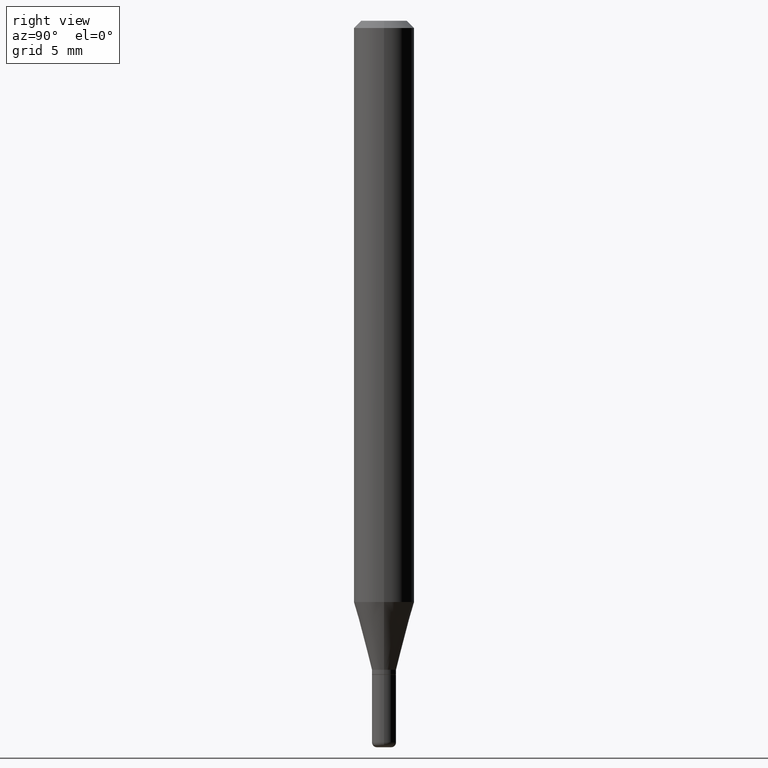
[diagram: clean part render]
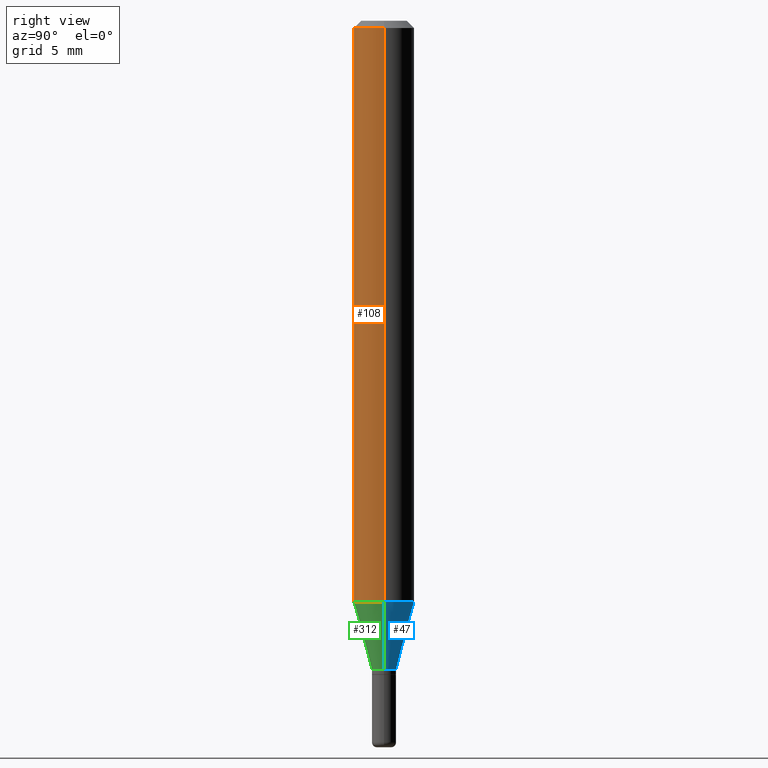
[diagram: same view with three faces highlighted in distinct colors, each labeled with its STEP entity id]
A machine part, right view with three faces highlighted in distinct colors.
Their STEP definitions:

[orange] entity #108 — the highlighted cylindrical surface (edge-blend (fillet) strip) has radius 1.5875 mm, axis along (-0, 0, 1).
#36 = VECTOR ( 'NONE', #422, 39.37007874015748143 ) ;
#39 = CARTESIAN_POINT ( 'NONE',  ( 0.06250000000000000000, -4.888073874380378612E-16, -0.01499999999999970281 ) ) ;
#50 = DIRECTION ( 'NONE',  ( 1.000000000000000000, -6.982962677686262766E-15, 0.000000000000000000 ) ) ;
#92 = CIRCLE ( 'NONE', #308, 0.06250000000000000000 ) ;
#95 = CARTESIAN_POINT ( 'NONE',  ( 0.000000000000000000, 0.000000000000000000, 0.000000000000000000 ) ) ;
#98 = DIRECTION ( 'NONE',  ( 1.000000000000000000, -6.982962677686266711E-15, 0.000000000000000000 ) ) ;
#100 = VECTOR ( 'NONE', #500, 39.37007874015748143 ) ;
#103 = EDGE_CURVE ( 'NONE', #200, #300, #287, .T. ) ;
#108 = ADVANCED_FACE ( 'NONE', ( #374 ), #459, .T. ) ;
#111 = ORIENTED_EDGE ( 'NONE', *, *, #404, .T. ) ;
#115 = EDGE_CURVE ( 'NONE', #200, #486, #296, .T. ) ;
#127 = AXIS2_PLACEMENT_3D ( 'NONE', #95, #173, #421 ) ;
#151 = ORIENTED_EDGE ( 'NONE', *, *, #453, .F. ) ;
#173 = DIRECTION ( 'NONE',  ( -2.445468806185136597E-29, 3.491481338843145583E-15, 1.000000000000000000 ) ) ;
#179 = CARTESIAN_POINT ( 'NONE',  ( 0.06250000000000000000, -4.364351673553916694E-16, 3.047610484872459871E-30 ) ) ;
#182 = CARTESIAN_POINT ( 'NONE',  ( -0.06250000000000000000, -3.745856318565706082E-15, -1.200048094716167135 ) ) ;
#200 = VERTEX_POINT ( 'NONE', #182 ) ;
#230 = VERTEX_POINT ( 'NONE', #39 ) ;
#231 = ORIENTED_EDGE ( 'NONE', *, *, #103, .F. ) ;
#244 = LINE ( 'NONE', #179, #36 ) ;
#248 = CARTESIAN_POINT ( 'NONE',  ( 2.934680181550293043E-29, -4.189945528415768698E-15, -1.200048094716167135 ) ) ;
#268 = AXIS2_PLACEMENT_3D ( 'NONE', #248, #290, #50 ) ;
#287 = LINE ( 'NONE', #423, #100 ) ;
#290 = DIRECTION ( 'NONE',  ( -2.445468806185136597E-29, 3.491481338843145583E-15, 1.000000000000000000 ) ) ;
#296 = CIRCLE ( 'NONE', #268, 0.06250000000000000000 ) ;
#300 = VERTEX_POINT ( 'NONE', #342 ) ;
#308 = AXIS2_PLACEMENT_3D ( 'NONE', #460, #328, #98 ) ;
#328 = DIRECTION ( 'NONE',  ( -2.445468806185136597E-29, 3.491481338843145583E-15, 1.000000000000000000 ) ) ;
#342 = CARTESIAN_POINT ( 'NONE',  ( -0.06250000000000000000, -1.677069664399144681E-15, -0.01499999999999970281 ) ) ;
#374 = FACE_OUTER_BOUND ( 'NONE', #515, .T. ) ;
#396 = ORIENTED_EDGE ( 'NONE', *, *, #115, .T. ) ;
#404 = EDGE_CURVE ( 'NONE', #486, #230, #244, .T. ) ;
#421 = DIRECTION ( 'NONE',  ( 1.000000000000000000, -6.982962677686266711E-15, 4.876176775795935793E-29 ) ) ;
#422 = DIRECTION ( 'NONE',  ( -2.445468806185136877E-29, 3.491481338843145188E-15, 1.000000000000000000 ) ) ;
#423 = CARTESIAN_POINT ( 'NONE',  ( -0.06250000000000000000, 4.440892098500626162E-16, -3.074334431409316114E-30 ) ) ;
#424 = CARTESIAN_POINT ( 'NONE',  ( 0.06250000000000000000, -4.626380695771160368E-15, -1.200048094716167135 ) ) ;
#453 = EDGE_CURVE ( 'NONE', #300, #230, #92, .T. ) ;
#459 = CYLINDRICAL_SURFACE ( 'NONE', #127, 0.06250000000000000000 ) ;
#460 = CARTESIAN_POINT ( 'NONE',  ( 3.668203209277632395E-31, -5.237222008264614861E-17, -0.01499999999999970281 ) ) ;
#486 = VERTEX_POINT ( 'NONE', #424 ) ;
#500 = DIRECTION ( 'NONE',  ( -2.445468806185136877E-29, 3.491481338843145188E-15, 1.000000000000000000 ) ) ;
#515 = EDGE_LOOP ( 'NONE', ( #231, #396, #111, #151 ) ) ;

[blue] entity #47 — the highlighted conical surface has half-angle 15 deg.
#10 = ORIENTED_EDGE ( 'NONE', *, *, #208, .F. ) ;
#27 = DIRECTION ( 'NONE',  ( -2.445468806185136597E-29, 3.491481338843145583E-15, 1.000000000000000000 ) ) ;
#47 = ADVANCED_FACE ( 'NONE', ( #336 ), #59, .T. ) ;
#59 = CONICAL_SURFACE ( 'NONE', #351, 0.02499999999999996322, 0.2617993877991492968 ) ;
#69 = DIRECTION ( 'NONE',  ( 1.000000000000000000, -6.982962677686265133E-15, 0.000000000000000000 ) ) ;
#101 = DIRECTION ( 'NONE',  ( -0.2588190451025205729, 5.211531920934544731E-15, 0.9659258262890682012 ) ) ;
#138 = CARTESIAN_POINT ( 'NONE',  ( -0.02499999999999996322, -4.500949310109790531E-15, -1.340000000000000080 ) ) ;
#152 = CARTESIAN_POINT ( 'NONE',  ( -0.02499999999999996322, -4.123402814337748307E-15, -1.340000000000000080 ) ) ;
#182 = CARTESIAN_POINT ( 'NONE',  ( -0.06250000000000000000, -3.745856318565706082E-15, -1.200048094716167135 ) ) ;
#190 = EDGE_LOOP ( 'NONE', ( #320, #317, #363, #10 ) ) ;
#200 = VERTEX_POINT ( 'NONE', #182 ) ;
#208 = EDGE_CURVE ( 'NONE', #355, #486, #217, .T. ) ;
#210 = DIRECTION ( 'NONE',  ( 1.000000000000000000, -6.982962677686265133E-15, 0.000000000000000000 ) ) ;
#216 = DIRECTION ( 'NONE',  ( -2.445468806185136597E-29, 3.491481338843145583E-15, 1.000000000000000000 ) ) ;
#217 = LINE ( 'NONE', #388, #369 ) ;
#259 = EDGE_CURVE ( 'NONE', #355, #323, #269, .T. ) ;
#260 = VECTOR ( 'NONE', #101, 39.37007874015748854 ) ;
#269 = CIRCLE ( 'NONE', #279, 0.02499999999999996322 ) ;
#279 = AXIS2_PLACEMENT_3D ( 'NONE', #299, #27, #69 ) ;
#291 = LINE ( 'NONE', #138, #260 ) ;
#299 = CARTESIAN_POINT ( 'NONE',  ( 3.276928200288083533E-29, -4.678584994049815735E-15, -1.340000000000000080 ) ) ;
#317 = ORIENTED_EDGE ( 'NONE', *, *, #387, .T. ) ;
#320 = ORIENTED_EDGE ( 'NONE', *, *, #259, .T. ) ;
#323 = VERTEX_POINT ( 'NONE', #152 ) ;
#330 = DIRECTION ( 'NONE',  ( -2.445468806185136597E-29, 3.491481338843145583E-15, 1.000000000000000000 ) ) ;
#335 = CARTESIAN_POINT ( 'NONE',  ( 0.02499999999999996322, -4.853159060991972403E-15, -1.340000000000000080 ) ) ;
#336 = FACE_OUTER_BOUND ( 'NONE', #190, .T. ) ;
#346 = DIRECTION ( 'NONE',  ( 0.2588190451025205729, 1.565188264969627490E-15, 0.9659258262890682012 ) ) ;
#351 = AXIS2_PLACEMENT_3D ( 'NONE', #493, #330, #210 ) ;
#353 = AXIS2_PLACEMENT_3D ( 'NONE', #420, #216, #507 ) ;
#355 = VERTEX_POINT ( 'NONE', #335 ) ;
#362 = EDGE_CURVE ( 'NONE', #486, #200, #389, .T. ) ;
#363 = ORIENTED_EDGE ( 'NONE', *, *, #362, .F. ) ;
#369 = VECTOR ( 'NONE', #346, 39.37007874015748854 ) ;
#387 = EDGE_CURVE ( 'NONE', #323, #200, #291, .T. ) ;
#388 = CARTESIAN_POINT ( 'NONE',  ( 0.02499999999999996322, -4.853159060991972403E-15, -1.340000000000000080 ) ) ;
#389 = CIRCLE ( 'NONE', #353, 0.06250000000000000000 ) ;
#420 = CARTESIAN_POINT ( 'NONE',  ( 2.934680181550293043E-29, -4.189945528415768698E-15, -1.200048094716167135 ) ) ;
#424 = CARTESIAN_POINT ( 'NONE',  ( 0.06250000000000000000, -4.626380695771160368E-15, -1.200048094716167135 ) ) ;
#486 = VERTEX_POINT ( 'NONE', #424 ) ;
#493 = CARTESIAN_POINT ( 'NONE',  ( 3.276928200288083533E-29, -4.678584994049815735E-15, -1.340000000000000080 ) ) ;
#507 = DIRECTION ( 'NONE',  ( 1.000000000000000000, -6.982962677686262766E-15, 0.000000000000000000 ) ) ;

[green] entity #312 — the highlighted conical surface has half-angle 15 deg.
#21 = AXIS2_PLACEMENT_3D ( 'NONE', #150, #386, #514 ) ;
#50 = DIRECTION ( 'NONE',  ( 1.000000000000000000, -6.982962677686262766E-15, 0.000000000000000000 ) ) ;
#64 = DIRECTION ( 'NONE',  ( -2.445468806185136597E-29, 3.491481338843145583E-15, 1.000000000000000000 ) ) ;
#87 = EDGE_LOOP ( 'NONE', ( #189, #149, #155, #313 ) ) ;
#101 = DIRECTION ( 'NONE',  ( -0.2588190451025205729, 5.211531920934544731E-15, 0.9659258262890682012 ) ) ;
#115 = EDGE_CURVE ( 'NONE', #200, #486, #296, .T. ) ;
#119 = CONICAL_SURFACE ( 'NONE', #21, 0.02499999999999996322, 0.2617993877991492968 ) ;
#138 = CARTESIAN_POINT ( 'NONE',  ( -0.02499999999999996322, -4.500949310109790531E-15, -1.340000000000000080 ) ) ;
#149 = ORIENTED_EDGE ( 'NONE', *, *, #204, .T. ) ;
#150 = CARTESIAN_POINT ( 'NONE',  ( 3.276928200288083533E-29, -4.678584994049815735E-15, -1.340000000000000080 ) ) ;
#152 = CARTESIAN_POINT ( 'NONE',  ( -0.02499999999999996322, -4.123402814337748307E-15, -1.340000000000000080 ) ) ;
#155 = ORIENTED_EDGE ( 'NONE', *, *, #208, .T. ) ;
#182 = CARTESIAN_POINT ( 'NONE',  ( -0.06250000000000000000, -3.745856318565706082E-15, -1.200048094716167135 ) ) ;
#189 = ORIENTED_EDGE ( 'NONE', *, *, #387, .F. ) ;
#200 = VERTEX_POINT ( 'NONE', #182 ) ;
#204 = EDGE_CURVE ( 'NONE', #323, #355, #343, .T. ) ;
#208 = EDGE_CURVE ( 'NONE', #355, #486, #217, .T. ) ;
#217 = LINE ( 'NONE', #388, #369 ) ;
#248 = CARTESIAN_POINT ( 'NONE',  ( 2.934680181550293043E-29, -4.189945528415768698E-15, -1.200048094716167135 ) ) ;
#260 = VECTOR ( 'NONE', #101, 39.37007874015748854 ) ;
#262 = DIRECTION ( 'NONE',  ( 1.000000000000000000, -6.982962677686265133E-15, 0.000000000000000000 ) ) ;
#268 = AXIS2_PLACEMENT_3D ( 'NONE', #248, #290, #50 ) ;
#290 = DIRECTION ( 'NONE',  ( -2.445468806185136597E-29, 3.491481338843145583E-15, 1.000000000000000000 ) ) ;
#291 = LINE ( 'NONE', #138, #260 ) ;
#296 = CIRCLE ( 'NONE', #268, 0.06250000000000000000 ) ;
#312 = ADVANCED_FACE ( 'NONE', ( #428 ), #119, .T. ) ;
#313 = ORIENTED_EDGE ( 'NONE', *, *, #115, .F. ) ;
#323 = VERTEX_POINT ( 'NONE', #152 ) ;
#335 = CARTESIAN_POINT ( 'NONE',  ( 0.02499999999999996322, -4.853159060991972403E-15, -1.340000000000000080 ) ) ;
#343 = CIRCLE ( 'NONE', #508, 0.02499999999999996322 ) ;
#346 = DIRECTION ( 'NONE',  ( 0.2588190451025205729, 1.565188264969627490E-15, 0.9659258262890682012 ) ) ;
#355 = VERTEX_POINT ( 'NONE', #335 ) ;
#357 = CARTESIAN_POINT ( 'NONE',  ( 3.276928200288083533E-29, -4.678584994049815735E-15, -1.340000000000000080 ) ) ;
#369 = VECTOR ( 'NONE', #346, 39.37007874015748854 ) ;
#386 = DIRECTION ( 'NONE',  ( -2.445468806185136597E-29, 3.491481338843145583E-15, 1.000000000000000000 ) ) ;
#387 = EDGE_CURVE ( 'NONE', #323, #200, #291, .T. ) ;
#388 = CARTESIAN_POINT ( 'NONE',  ( 0.02499999999999996322, -4.853159060991972403E-15, -1.340000000000000080 ) ) ;
#424 = CARTESIAN_POINT ( 'NONE',  ( 0.06250000000000000000, -4.626380695771160368E-15, -1.200048094716167135 ) ) ;
#428 = FACE_OUTER_BOUND ( 'NONE', #87, .T. ) ;
#486 = VERTEX_POINT ( 'NONE', #424 ) ;
#508 = AXIS2_PLACEMENT_3D ( 'NONE', #357, #64, #262 ) ;
#514 = DIRECTION ( 'NONE',  ( 1.000000000000000000, -6.982962677686265133E-15, 0.000000000000000000 ) ) ;